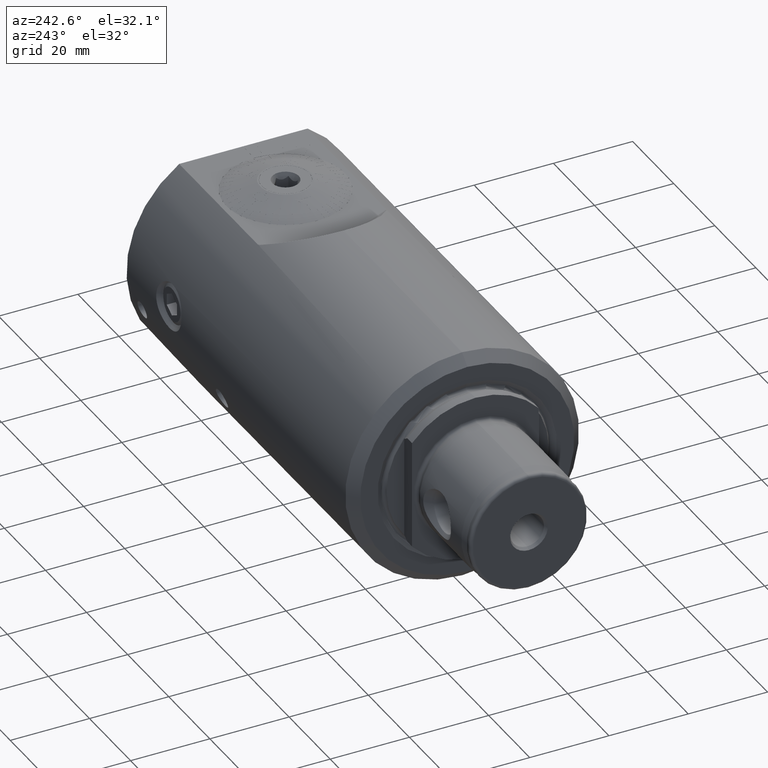
[diagram: clean part render]
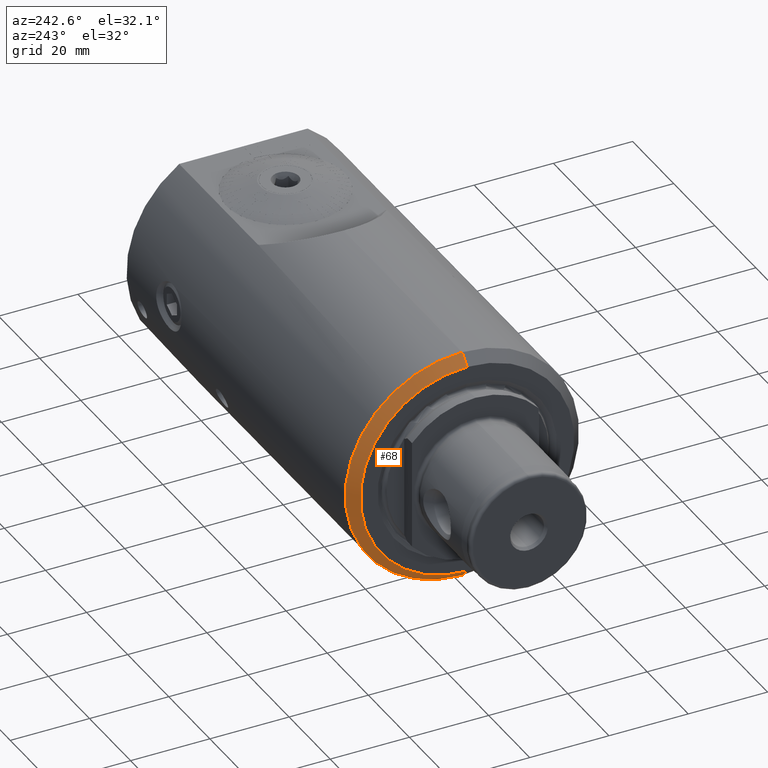
[diagram: same view with one face highlighted and labeled with its STEP entity id]
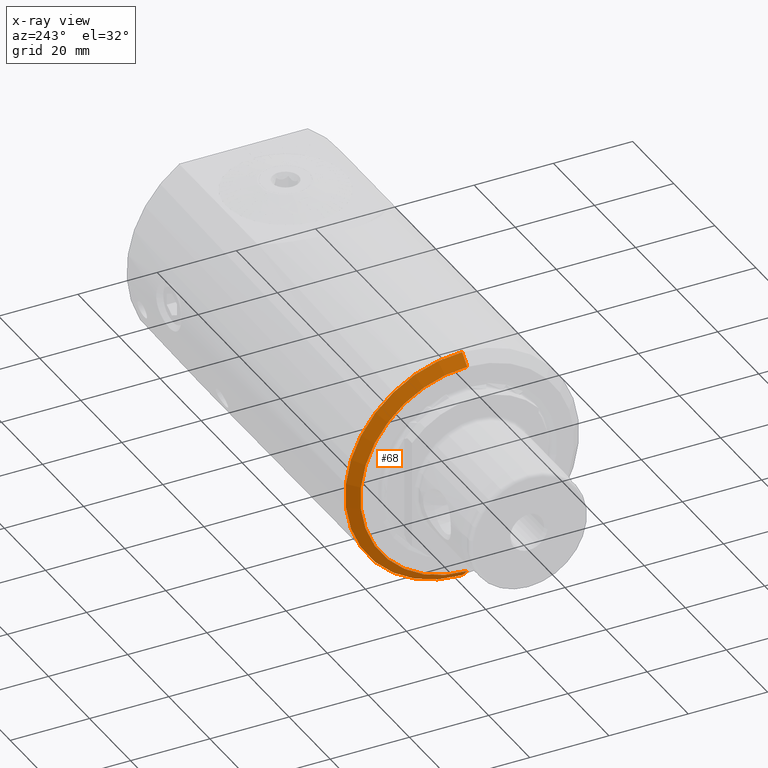
[diagram: x-ray of the same camera — body ghosted, the highlighted face saturated]
A machine part, auxiliary view. The second image highlights one B-rep face of the part: STEP entity #68.
The next image is the same camera in x-ray: the body ghosted, the highlighted face saturated — about 0% of this face is hidden behind the body in this view.
In plain terms, the highlighted conical surface has half-angle 45 deg.
Its self-contained STEP definition (entity closure, byte-faithful):
#68 = ADVANCED_FACE ( 'NONE', ( #16058 ), #14109, .T. ) ;
#843 = CIRCLE ( 'NONE', #5584, 27.00000000000000000 ) ;
#1894 = DIRECTION ( 'NONE',  ( 0.0000000000000000000, 0.0000000000000000000, 1.000000000000000000 ) ) ;
#3179 = VERTEX_POINT ( 'NONE', #17013 ) ;
#3969 = EDGE_CURVE ( 'NONE', #3179, #9004, #18208, .T. ) ;
#5584 = AXIS2_PLACEMENT_3D ( 'NONE', #18676, #6229, #1894 ) ;
#5662 = VERTEX_POINT ( 'NONE', #15477 ) ;
#6229 = DIRECTION ( 'NONE',  ( -1.000000000000000000, -0.0000000000000000000, -0.0000000000000000000 ) ) ;
#6444 = DIRECTION ( 'NONE',  ( 0.7071067811865493500, 8.659560562354908200E-017, 0.7071067811865455700 ) ) ;
#6761 = CARTESIAN_POINT ( 'NONE',  ( -108.4999999999999600, 4.314083075427408300E-029, -29.50000000000001400 ) ) ;
#6806 = EDGE_CURVE ( 'NONE', #21864, #5662, #24925, .T. ) ;
#7189 = ORIENTED_EDGE ( 'NONE', *, *, #3969, .F. ) ;
#8058 = EDGE_LOOP ( 'NONE', ( #11634, #26810, #20070, #7189 ) ) ;
#8257 = CARTESIAN_POINT ( 'NONE',  ( -108.4999999999999600, -3.122502256758252800E-014, 0.0000000000000000000 ) ) ;
#9004 = VERTEX_POINT ( 'NONE', #6761 ) ;
#10295 = CARTESIAN_POINT ( 'NONE',  ( -108.4999999999999600, -3.122502256758252800E-014, -29.50000000000001400 ) ) ;
#10520 = EDGE_CURVE ( 'NONE', #21864, #3179, #843, .T. ) ;
#10828 = CARTESIAN_POINT ( 'NONE',  ( -108.4999999999999600, -3.122502256758252800E-014, 0.0000000000000000000 ) ) ;
#11634 = ORIENTED_EDGE ( 'NONE', *, *, #10520, .F. ) ;
#12487 = DIRECTION ( 'NONE',  ( 0.0000000000000000000, 0.0000000000000000000, -1.000000000000000000 ) ) ;
#14109 = CONICAL_SURFACE ( 'NONE', #26164, 29.50000000000001400, 0.7853981633974456100 ) ;
#14349 = DIRECTION ( 'NONE',  ( 0.7071067811865493500, 0.0000000000000000000, -0.7071067811865455700 ) ) ;
#15477 = CARTESIAN_POINT ( 'NONE',  ( -108.4999999999999600, 3.612708057484739700E-015, 29.50000000000001400 ) ) ;
#16058 = FACE_OUTER_BOUND ( 'NONE', #8058, .T. ) ;
#17013 = CARTESIAN_POINT ( 'NONE',  ( -110.9999999999999900, -3.122502256758252800E-014, -27.00000000000000000 ) ) ;
#18208 = LINE ( 'NONE', #10295, #21424 ) ;
#18276 = DIRECTION ( 'NONE',  ( 0.0000000000000000000, 0.0000000000000000000, 1.000000000000000000 ) ) ;
#18676 = CARTESIAN_POINT ( 'NONE',  ( -110.9999999999999900, -3.122502256758252800E-014, 0.0000000000000000000 ) ) ;
#20070 = ORIENTED_EDGE ( 'NONE', *, *, #22553, .T. ) ;
#21424 = VECTOR ( 'NONE', #14349, 1000.000000000000100 ) ;
#21864 = VERTEX_POINT ( 'NONE', #25985 ) ;
#22141 = CIRCLE ( 'NONE', #22675, 29.50000000000001400 ) ;
#22553 = EDGE_CURVE ( 'NONE', #5662, #9004, #22141, .T. ) ;
#22675 = AXIS2_PLACEMENT_3D ( 'NONE', #10828, #25719, #18276 ) ;
#22956 = CARTESIAN_POINT ( 'NONE',  ( -108.4999999999999600, -2.761231451009783500E-014, 29.50000000000001400 ) ) ;
#24895 = DIRECTION ( 'NONE',  ( 1.000000000000000000, 0.0000000000000000000, 0.0000000000000000000 ) ) ;
#24925 = LINE ( 'NONE', #22956, #25570 ) ;
#25570 = VECTOR ( 'NONE', #6444, 1000.000000000000100 ) ;
#25719 = DIRECTION ( 'NONE',  ( -1.000000000000000000, -0.0000000000000000000, -0.0000000000000000000 ) ) ;
#25985 = CARTESIAN_POINT ( 'NONE',  ( -110.9999999999999900, -2.776539535999125300E-014, 27.00000000000000000 ) ) ;
#26164 = AXIS2_PLACEMENT_3D ( 'NONE', #8257, #24895, #12487 ) ;
#26810 = ORIENTED_EDGE ( 'NONE', *, *, #6806, .T. ) ;